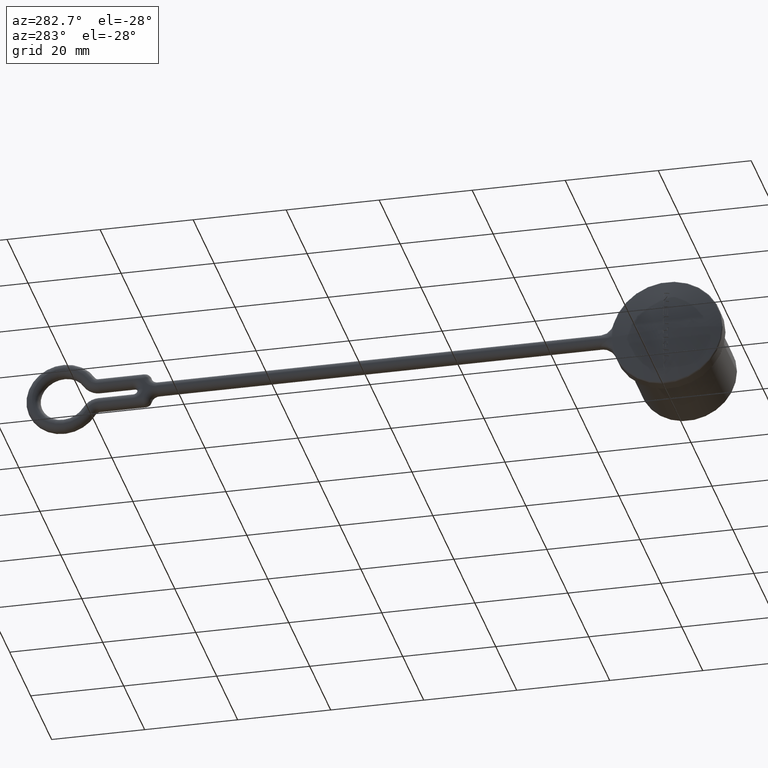
[diagram: clean part render]
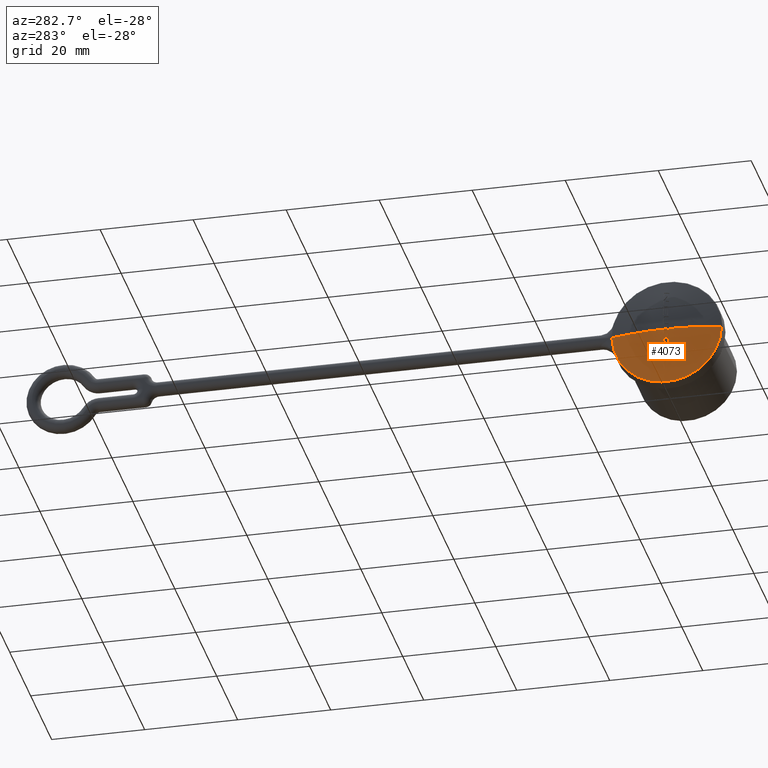
[diagram: same view with one face highlighted and labeled with its STEP entity id]
A machine part, auxiliary view. The second image highlights one B-rep face of the part: STEP entity #4073.
In plain terms, the highlighted spherical surface has radius 48.75 mm.
Its self-contained STEP definition (entity closure, byte-faithful):
#710=CARTESIAN_POINT('',(-3.057208958096E0,0.E0,0.E0));
#711=DIRECTION('',(-1.E0,0.E0,0.E0));
#712=DIRECTION('',(0.E0,9.990943170941E-1,-4.255050587678E-2));
#713=AXIS2_PLACEMENT_3D('',#710,#711,#712);
#756=CARTESIAN_POINT('',(-3.057209793561E0,1.176178341814E1,
-5.009238394383E-1));
#757=CARTESIAN_POINT('',(-3.057523340056E0,1.176293499633E1,
-4.442870627712E-1));
#758=CARTESIAN_POINT('',(-3.059185064044E0,1.176014676627E1,
-3.316713439613E-1));
#759=CARTESIAN_POINT('',(-3.060141706967E0,1.176016224618E1,
-1.646996612449E-1));
#760=CARTESIAN_POINT('',(-3.060118612482E0,1.176016822093E1,
-5.469247591554E-2));
#761=CARTESIAN_POINT('',(-3.060216983427E0,1.175977246916E1,
-4.892866496235E-8));
#763=CARTESIAN_POINT('',(4.425E1,0.E0,0.E0));
#764=DIRECTION('',(0.E0,2.059349286905E-13,1.E0));
#765=DIRECTION('',(-9.704687696995E-1,2.412267958537E-1,-4.967702300238E-14));
#766=AXIS2_PLACEMENT_3D('',#763,#764,#765);
#768=CARTESIAN_POINT('',(4.425E1,0.E0,0.E0));
#769=DIRECTION('',(0.E0,4.136462142204E-13,1.E0));
#770=DIRECTION('',(-1.E0,0.E0,0.E0));
#771=AXIS2_PLACEMENT_3D('',#768,#769,#770);
#773=CARTESIAN_POINT('',(-4.498080625976E0,-4.325913584815E-1,
4.933543109338E-14));
#774=CARTESIAN_POINT('',(-4.498080625976E0,-4.325913584815E-1,
-3.915975593561E-2));
#775=CARTESIAN_POINT('',(-4.497996886026E0,-4.326119912033E-1,
-1.131116318106E-1));
#776=CARTESIAN_POINT('',(-4.497556203359E0,-4.325519952907E-1,
-2.367846832174E-1));
#777=CARTESIAN_POINT('',(-4.497089122367E0,-4.325913584815E-1,
-3.133244833004E-1));
#778=CARTESIAN_POINT('',(-4.496808859339E0,-4.325913584815E-1,
-3.521231999408E-1));
#780=CARTESIAN_POINT('',(-4.496808859339E0,-4.325913584815E-1,
-3.521231999408E-1));
#781=CARTESIAN_POINT('',(-4.497431655633E0,-3.721529745646E-1,
-3.401552031350E-1));
#782=CARTESIAN_POINT('',(-4.498375862609E0,-2.577881739557E-1,
-3.175094767189E-1));
#783=CARTESIAN_POINT('',(-4.499097437384E0,-1.083110463108E-1,
-2.879088002912E-1));
#784=CARTESIAN_POINT('',(-4.499349786419E0,2.317548602823E-2,
-2.618736375341E-1));
#785=CARTESIAN_POINT('',(-4.499249432860E0,1.534141175026E-1,
-2.360839600087E-1));
#786=CARTESIAN_POINT('',(-4.498754162778E0,2.927464829276E-1,
-2.084907586976E-1));
#787=CARTESIAN_POINT('',(-4.498029589729E0,4.007198801805E-1,
-1.871110736034E-1));
#788=CARTESIAN_POINT('',(-4.497526856209E0,4.585512015185E-1,
-1.756593268129E-1));
#790=CARTESIAN_POINT('',(-4.497526856209E0,4.585512015185E-1,
-1.756593268129E-1));
#791=CARTESIAN_POINT('',(-4.497272979800E0,4.585512015185E-1,
-2.461130131400E-1));
#792=CARTESIAN_POINT('',(-4.496462225808E0,4.586984267829E-1,
-3.905752090823E-1));
#793=CARTESIAN_POINT('',(-4.493854253568E0,4.582199038994E-1,
-6.430186121275E-1));
#794=CARTESIAN_POINT('',(-4.490817496245E0,4.585512015186E-1,
-8.336809729970E-1));
#795=CARTESIAN_POINT('',(-4.488893381997E0,4.585512015186E-1,
-9.340785268129E-1));
#797=CARTESIAN_POINT('',(-4.488893381997E0,4.585512015186E-1,
-9.340785268129E-1));
#798=CARTESIAN_POINT('',(-4.489454546357E0,3.585803908266E-1,
-9.538747269343E-1));
#799=CARTESIAN_POINT('',(-4.489933442665E0,1.751657467374E-1,
-9.903071313617E-1));
#800=CARTESIAN_POINT('',(-4.488792025554E0,-1.356907646982E-1,
-1.051805901639E0));
#801=CARTESIAN_POINT('',(-4.486811293758E0,-3.293632169291E-1,
-1.090101183808E0));
#802=CARTESIAN_POINT('',(-4.485429210122E0,-4.325913584817E-1,
-1.110542399941E0));
#804=CARTESIAN_POINT('',(-4.485429210122E0,-4.325913584817E-1,
-1.110542399941E0));
#805=CARTESIAN_POINT('',(-4.483947095646E0,-4.325913584817E-1,
-1.175584027466E0));
#806=CARTESIAN_POINT('',(-4.480649402034E0,-4.325757167476E-1,
-1.308853007131E0));
#807=CARTESIAN_POINT('',(-4.474617770362E0,-4.326079811439E-1,
-1.517252247453E0));
#808=CARTESIAN_POINT('',(-4.469803864877E0,-4.325913584815E-1,
-1.661774402549E0));
#809=CARTESIAN_POINT('',(-4.467183579362E0,-4.325913584815E-1,
-1.735335359941E0));
#811=CARTESIAN_POINT('',(-4.467183579362E0,-4.325913584815E-1,
-1.735335359941E0));
#812=CARTESIAN_POINT('',(-4.466709031189E0,-4.623749085332E-1,
-1.741233092620E0));
#813=CARTESIAN_POINT('',(-4.465698024899E0,-5.222730860976E-1,
-1.753094086311E0));
#814=CARTESIAN_POINT('',(-4.463981141187E0,-6.135404872537E-1,
-1.771166897322E0));
#815=CARTESIAN_POINT('',(-4.462701880191E0,-6.751268983993E-1,
-1.783362199491E0));
#816=CARTESIAN_POINT('',(-4.462026163502E0,-7.061639984814E-1,
-1.789508159898E0));
#818=CARTESIAN_POINT('',(-4.462026163502E0,-7.061639984814E-1,
-1.789508159898E0));
#819=CARTESIAN_POINT('',(-4.467858173941E0,-7.061639984814E-1,
-1.630755575558E0));
#820=CARTESIAN_POINT('',(-4.477382949954E0,-7.061651811377E-1,
-1.328991058626E0));
#821=CARTESIAN_POINT('',(-4.486464709706E0,-7.061602831335E-1,
-9.310413564554E-1));
#822=CARTESIAN_POINT('',(-4.491758699698E0,-7.061649635257E-1,
-5.829382380216E-1));
#823=CARTESIAN_POINT('',(-4.494342333398E0,-7.061641146659E-1,
-2.808995927502E-1));
#824=CARTESIAN_POINT('',(-4.494885192273E0,-7.061639984816E-1,
-9.906771831985E-2));
#825=CARTESIAN_POINT('',(-4.494885192273E0,-7.061639984816E-1,
9.300844638873E-14));
#827=CARTESIAN_POINT('',(4.425E1,0.E0,0.E0));
#828=DIRECTION('',(0.E0,4.136462142204E-13,1.E0));
#829=DIRECTION('',(-9.998950808670E-1,-1.448541535346E-2,0.E0));
#830=AXIS2_PLACEMENT_3D('',#827,#828,#829);
#832=CARTESIAN_POINT('',(-4.299103784608E0,-3.432062384814E-1,
-4.407860159898E0));
#833=CARTESIAN_POINT('',(-4.298841429486E0,-3.803402284300E-1,
-4.407858455902E0));
#834=CARTESIAN_POINT('',(-4.299322196569E0,-4.499594600489E-1,
-4.396342743900E0));
#835=CARTESIAN_POINT('',(-4.306305568314E0,-5.474782355764E-1,
-4.307466892834E0));
#836=CARTESIAN_POINT('',(-4.317012399508E0,-6.031694617255E-1,
-4.177470050581E0));
#837=CARTESIAN_POINT('',(-4.329190139496E0,-6.427679570801E-1,
-4.027467169485E0));
#838=CARTESIAN_POINT('',(-4.342473670487E0,-6.700208331774E-1,
-3.859489228670E0));
#839=CARTESIAN_POINT('',(-4.356573875067E0,-6.879204811135E-1,
-3.674618954814E0));
#840=CARTESIAN_POINT('',(-4.371278167049E0,-6.990601074680E-1,
-3.472743116211E0));
#841=CARTESIAN_POINT('',(-4.386382377885E0,-7.049955765509E-1,
-3.253504897467E0));
#842=CARTESIAN_POINT('',(-4.396629752852E0,-7.061639984816E-1,
-3.094524390173E0));
#843=CARTESIAN_POINT('',(-4.401738326017E0,-7.061639984816E-1,
-3.012007679978E0));
#845=CARTESIAN_POINT('',(-4.401738326017E0,-7.061639984816E-1,
-3.012007679978E0));
#846=CARTESIAN_POINT('',(-4.408790271638E0,-7.061639984816E-1,
-2.898100462769E0));
#847=CARTESIAN_POINT('',(-4.421846902277E0,-7.061765052774E-1,
-2.674220843784E0));
#848=CARTESIAN_POINT('',(-4.438510344406E0,-7.061520792435E-1,
-2.350831999088E0));
#849=CARTESIAN_POINT('',(-4.447832946400E0,-7.061639984815E-1,
-2.143637841006E0));
#850=CARTESIAN_POINT('',(-4.452081923116E0,-7.061639984815E-1,
-2.042314559978E0));
#852=CARTESIAN_POINT('',(-4.452081923116E0,-7.061639984815E-1,
-2.042314559978E0));
#853=CARTESIAN_POINT('',(-4.454775573615E0,-5.786914813487E-1,
-2.022156115408E0));
#854=CARTESIAN_POINT('',(-4.459121544451E0,-3.281145455581E-1,
-1.982509437012E0));
#855=CARTESIAN_POINT('',(-4.462736200832E0,8.014023975726E-2,
-1.917959838117E0));
#856=CARTESIAN_POINT('',(-4.462855204952E0,3.290269379606E-1,
-1.878609946773E0));
#857=CARTESIAN_POINT('',(-4.462417253708E0,4.585512015187E-1,
-1.858127039978E0));
#859=CARTESIAN_POINT('',(-4.462417253708E0,4.585512015187E-1,
-1.858127039978E0));
#860=CARTESIAN_POINT('',(-4.459050008427E0,4.585512015187E-1,
-1.946402305127E0));
#861=CARTESIAN_POINT('',(-4.451721948481E0,4.585437904206E-1,
-2.125912079167E0));
#862=CARTESIAN_POINT('',(-4.438823310755E0,4.585588884896E-1,
-2.403586295216E0));
#863=CARTESIAN_POINT('',(-4.428870994915E0,4.585512015188E-1,
-2.594050191819E0));
#864=CARTESIAN_POINT('',(-4.423534874146E0,4.585512015188E-1,
-2.690582399978E0));
#866=CARTESIAN_POINT('',(-4.423534874146E0,4.585512015188E-1,
-2.690582399978E0));
#867=CARTESIAN_POINT('',(-4.423569066063E0,4.082168833220E-1,
-2.698542245646E0));
#868=CARTESIAN_POINT('',(-4.423478457836E0,3.078313002268E-1,
-2.714417137675E0));
#869=CARTESIAN_POINT('',(-4.422857156275E0,1.560337147979E-1,
-2.738422397426E0));
#870=CARTESIAN_POINT('',(-4.422125880318E0,5.563665719373E-2,
-2.754299118615E0));
#871=CARTESIAN_POINT('',(-4.421679650257E0,5.305441518801E-3,
-2.762258473652E0));
#873=CARTESIAN_POINT('',(-4.421679650257E0,5.305441518801E-3,
-2.762258473652E0));
#874=CARTESIAN_POINT('',(-4.417697050178E0,5.255407676118E-2,
-2.832342125207E0));
#875=CARTESIAN_POINT('',(-4.409111472982E0,1.491760084709E-1,
-2.975654687498E0));
#876=CARTESIAN_POINT('',(-4.394220807171E0,3.001640724351E-1,
-3.199627389553E0));
#877=CARTESIAN_POINT('',(-4.382806947578E0,4.050833329744E-1,
-3.355246912375E0));
#878=CARTESIAN_POINT('',(-4.376701092884E0,4.585512015186E-1,
-3.434555519898E0));
#880=CARTESIAN_POINT('',(-4.376701092884E0,4.585512015186E-1,
-3.434555519898E0));
#881=CARTESIAN_POINT('',(-4.369011789234E0,4.585512015186E-1,
-3.543421272115E0));
#882=CARTESIAN_POINT('',(-4.352768980096E0,4.585502302638E-1,
-3.762985887248E0));
#883=CARTESIAN_POINT('',(-4.325700193083E0,4.585521869438E-1,
-4.097779070939E0));
#884=CARTESIAN_POINT('',(-4.305792358798E0,4.585512015189E-1,
-4.324396041922E0));
#885=CARTESIAN_POINT('',(-4.295354391202E0,4.585512015189E-1,
-4.438558079898E0));
#887=CARTESIAN_POINT('',(-4.295354391202E0,4.585512015189E-1,
-4.438558079898E0));
#888=CARTESIAN_POINT('',(-4.305373278827E0,3.988656956535E-1,
-4.335145759575E0));
#889=CARTESIAN_POINT('',(-4.324151799597E0,2.817032568197E-1,
-4.132155844726E0));
#890=CARTESIAN_POINT('',(-4.348792184368E0,1.129562635845E-1,
-3.839765602653E0));
#891=CARTESIAN_POINT('',(-4.363091081898E0,4.894935912337E-3,
-3.652544015427E0));
#892=CARTESIAN_POINT('',(-4.369746733238E0,-4.796447848184E-2,
-3.560958719899E0));
#894=CARTESIAN_POINT('',(-4.369746733238E0,-4.796447848184E-2,
-3.560958719899E0));
#895=CARTESIAN_POINT('',(-4.365724683147E0,-4.796447848184E-2,
-3.615874003156E0));
#896=CARTESIAN_POINT('',(-4.357762009086E0,-4.864369333606E-2,
-3.722030357118E0));
#897=CARTESIAN_POINT('',(-4.346184909466E0,-5.261798893592E-2,
-3.870061091562E0));
#898=CARTESIAN_POINT('',(-4.335029663165E0,-6.091461610130E-2,
-4.007439099275E0));
#899=CARTESIAN_POINT('',(-4.324398243460E0,-7.600418413855E-2,
-4.133953333688E0));
#900=CARTESIAN_POINT('',(-4.314467689757E0,-1.024964337553E-1,
-4.248380253823E0));
#901=CARTESIAN_POINT('',(-4.305757389958E0,-1.509025202474E-1,
-4.345304124075E0));
#902=CARTESIAN_POINT('',(-4.300427629573E0,-2.356718953467E-1,
-4.400704449271E0));
#903=CARTESIAN_POINT('',(-4.299374765907E0,-3.048512913659E-1,
-4.407861919921E0));
#904=CARTESIAN_POINT('',(-4.299103784608E0,-3.432062384814E-1,
-4.407860159898E0));
#906=CARTESIAN_POINT('',(-3.863169370562E0,4.585512015178E-1,
-7.840609919885E0));
#907=CARTESIAN_POINT('',(-3.844268267497E0,4.585512015178E-1,
-7.956594770847E0));
#908=CARTESIAN_POINT('',(-3.805627087884E0,4.585512020111E-1,
-8.188428631990E0));
#909=CARTESIAN_POINT('',(-3.745154700708E0,4.585512020284E-1,
-8.535735668456E0));
#910=CARTESIAN_POINT('',(-3.703164626255E0,4.585512015182E-1,
-8.766985961690E0));
#911=CARTESIAN_POINT('',(-3.681751798631E0,4.585512015182E-1,
-8.882533439885E0));
#913=CARTESIAN_POINT('',(-3.681751798631E0,4.585512015182E-1,
-8.882533439885E0));
#914=CARTESIAN_POINT('',(-3.706088521425E0,3.895466050718E-1,
-8.754770384040E0));
#915=CARTESIAN_POINT('',(-3.752757490329E0,2.533722881533E-1,
-8.502643186550E0));
#916=CARTESIAN_POINT('',(-3.817031360148E0,5.479796551994E-2,
-8.134976662665E0));
#917=CARTESIAN_POINT('',(-3.856322782517E0,-7.392862136144E-2,
-7.896638979948E0));
#918=CARTESIAN_POINT('',(-3.875122996081E0,-1.373495984793E-1,
-7.779214079890E0));
#920=CARTESIAN_POINT('',(-3.875122996081E0,-1.373495984793E-1,
-7.779214079890E0));
#921=CARTESIAN_POINT('',(-3.853405625660E0,-1.980192271861E-1,
-7.912494661050E0));
#922=CARTESIAN_POINT('',(-3.807987379131E0,-3.210832035765E-1,
-8.182842032982E0));
#923=CARTESIAN_POINT('',(-3.733614155913E0,-5.106592556039E-1,
-8.599313019226E0));
#924=CARTESIAN_POINT('',(-3.679584489797E0,-6.404493165655E-1,
-8.884436317722E0));
#925=CARTESIAN_POINT('',(-3.651405020832E0,-7.061639984814E-1,
-9.028799999899E0));
#927=CARTESIAN_POINT('',(-3.651405020832E0,-7.061639984814E-1,
-9.028799999899E0));
#928=CARTESIAN_POINT('',(-3.671806364795E0,-7.061639984814E-1,
-8.920562688166E0));
#929=CARTESIAN_POINT('',(-3.711791150858E0,-7.061640531640E-1,
-8.704401567969E0));
#930=CARTESIAN_POINT('',(-3.769427625228E0,-7.061639491228E-1,
-8.380586094568E0));
#931=CARTESIAN_POINT('',(-3.806118560449E0,-7.061639984805E-1,
-8.166092635350E0));
#932=CARTESIAN_POINT('',(-3.824053591373E0,-7.061639984805E-1,
-8.059106879898E0));
#934=CARTESIAN_POINT('',(-3.824053591373E0,-7.061639984805E-1,
-8.059106879898E0));
#935=CARTESIAN_POINT('',(-3.845971216113E0,-6.448266451107E-1,
-7.933738790022E0));
#936=CARTESIAN_POINT('',(-3.888013589041E0,-5.236818837758E-1,
-7.686131639315E0));
#937=CARTESIAN_POINT('',(-3.945938825553E0,-3.467231330392E-1,
-7.324439851900E0));
#938=CARTESIAN_POINT('',(-3.981347957652E0,-2.318351902250E-1,
-7.089621021816E0));
#939=CARTESIAN_POINT('',(-3.998287973723E0,-1.751908925036E-1,
-6.973845119898E0));
#941=CARTESIAN_POINT('',(-3.998287973723E0,-1.751908925036E-1,
-6.973845119898E0));
#942=CARTESIAN_POINT('',(-3.996279615943E0,-2.340734711721E-1,
-6.986260671369E0));
#943=CARTESIAN_POINT('',(-3.992037247108E0,-3.518544869094E-1,
-7.011095112321E0));
#944=CARTESIAN_POINT('',(-3.984977444090E0,-5.289884245039E-1,
-7.048444294847E0));
#945=CARTESIAN_POINT('',(-3.979817664457E0,-6.470642025879E-1,
-7.073340887605E0));
#946=CARTESIAN_POINT('',(-3.977121405121E0,-7.061639984820E-1,
-7.085802239918E0));
#948=CARTESIAN_POINT('',(-3.977121405121E0,-7.061639984820E-1,
-7.085802239918E0));
#949=CARTESIAN_POINT('',(-3.990744646421E0,-7.061639984820E-1,
-6.993080246014E0));
#950=CARTESIAN_POINT('',(-4.017345228066E0,-7.061640434940E-1,
-6.808313963555E0));
#951=CARTESIAN_POINT('',(-4.055346570398E0,-7.061639543198E-1,
-6.533208892509E0));
#952=CARTESIAN_POINT('',(-4.079434870564E0,-7.061639984821E-1,
-6.351213391473E0));
#953=CARTESIAN_POINT('',(-4.091173927466E0,-7.061639984821E-1,
-6.260569919918E0));
#955=CARTESIAN_POINT('',(-4.091173927466E0,-7.061639984821E-1,
-6.260569919918E0));
#956=CARTESIAN_POINT('',(-4.096607368061E0,-5.765341370434E-1,
-6.233237111925E0));
#957=CARTESIAN_POINT('',(-4.106353949558E0,-3.181943913380E-1,
-6.178765798790E0));
#958=CARTESIAN_POINT('',(-4.117790737045E0,7.218806653517E-2,
-6.096451854481E0));
#959=CARTESIAN_POINT('',(-4.123166575755E0,3.295397663383E-1,
-6.042188971056E0));
#960=CARTESIAN_POINT('',(-4.125326019368E0,4.585512015190E-1,
-6.014986559918E0));
#962=CARTESIAN_POINT('',(-4.125326019368E0,4.585512015190E-1,
-6.014986559918E0));
#963=CARTESIAN_POINT('',(-4.114023747710E0,4.585512015190E-1,
-6.105884697556E0));
#964=CARTESIAN_POINT('',(-4.090832217606E0,4.585511665450E-1,
-6.288217218157E0));
#965=CARTESIAN_POINT('',(-4.054254596726E0,4.585512372698E-1,
-6.563311357814E0));
#966=CARTESIAN_POINT('',(-4.028658783400E0,4.585512015196E-1,
-6.747744814238E0));
#967=CARTESIAN_POINT('',(-4.015553311556E0,4.585512015196E-1,
-6.840218879919E0));
#969=CARTESIAN_POINT('',(-4.015553311556E0,4.585512015196E-1,
-6.840218879919E0));
#970=CARTESIAN_POINT('',(-4.014370966448E0,4.005406850166E-1,
-6.852450554716E0));
#971=CARTESIAN_POINT('',(-4.011788969588E0,2.845642326093E-1,
-6.876904500091E0));
#972=CARTESIAN_POINT('',(-4.007251022891E0,1.102640231053E-1,
-6.913656180398E0));
#973=CARTESIAN_POINT('',(-4.003791445056E0,-5.791222891287E-3,
-6.938126739948E0));
#974=CARTESIAN_POINT('',(-4.001951004156E0,-6.385782185109E-2,
-6.950370239884E0));
#976=CARTESIAN_POINT('',(-4.001951004156E0,-6.385782185109E-2,
-6.950370239884E0));
#977=CARTESIAN_POINT('',(-3.988337847814E0,-8.098519969070E-3,
-7.045389929139E0));
#978=CARTESIAN_POINT('',(-3.959969724540E0,1.049586310193E-1,
-7.238050264001E0));
#979=CARTESIAN_POINT('',(-3.913824528181E0,2.790447671989E-1,
-7.534713082284E0));
#980=CARTESIAN_POINT('',(-3.880501013071E0,3.982115461662E-1,
-7.737784828685E0));
#981=CARTESIAN_POINT('',(-3.863169370562E0,4.585512015178E-1,
-7.840609919885E0));
#983=CARTESIAN_POINT('',(-4.269651307864E0,4.585512015180E-1,
-4.711227839898E0));
#984=CARTESIAN_POINT('',(-4.260216430008E0,4.585512015180E-1,
-4.808395075123E0));
#985=CARTESIAN_POINT('',(-4.240669001039E0,4.585510738280E-1,
-5.003640424351E0));
#986=CARTESIAN_POINT('',(-4.209262100671E0,4.585513311581E-1,
-5.299234124699E0));
#987=CARTESIAN_POINT('',(-4.186907711893E0,4.585512015189E-1,
-5.498027019078E0));
#988=CARTESIAN_POINT('',(-4.175367721893E0,4.585512015189E-1,
-5.597855999898E0));
#990=CARTESIAN_POINT('',(-4.175367721893E0,4.585512015189E-1,
-5.597855999898E0));
#991=CARTESIAN_POINT('',(-4.173859990953E0,3.294519560011E-1,
-5.621474156443E0));
#992=CARTESIAN_POINT('',(-4.169799662745E0,7.215378882964E-2,
-5.668545223180E0));
#993=CARTESIAN_POINT('',(-4.160384554775E0,-3.185949647102E-1,
-5.740031991504E0));
#994=CARTESIAN_POINT('',(-4.152016436728E0,-5.766419370459E-1,
-5.787240170984E0));
#995=CARTESIAN_POINT('',(-4.147281524192E0,-7.061639984824E-1,
-5.810935679898E0));
#997=CARTESIAN_POINT('',(-4.147281524192E0,-7.061639984824E-1,
-5.810935679898E0));
#998=CARTESIAN_POINT('',(-4.159315356276E0,-7.061639984824E-1,
-5.710710037888E0));
#999=CARTESIAN_POINT('',(-4.182616390601E0,-7.061641579401E-1,
-5.511383252740E0));
#1000=CARTESIAN_POINT('',(-4.215332442876E0,-7.061638416341E-1,
-5.215793172665E0));
#1001=CARTESIAN_POINT('',(-4.235689635553E0,-7.061639984814E-1,
-5.021074930006E0));
#1002=CARTESIAN_POINT('',(-4.245515543783E0,-7.061639984814E-1,
-4.924307519898E0));
#1004=CARTESIAN_POINT('',(-4.245515543783E0,-7.061639984814E-1,
-4.924307519898E0));
#1005=CARTESIAN_POINT('',(-4.249807221034E0,-5.766548107984E-1,
-4.900614366183E0));
#1006=CARTESIAN_POINT('',(-4.257288280467E0,-3.189585268644E-1,
-4.853470584294E0));
#1007=CARTESIAN_POINT('',(-4.265397487862E0,7.280605128822E-2,
-4.781797312223E0));
#1008=CARTESIAN_POINT('',(-4.268578786780E0,3.295351434042E-1,
-4.734830777661E0));
#1009=CARTESIAN_POINT('',(-4.269651307864E0,4.585512015180E-1,
-4.711227839898E0));
#2577=CARTESIAN_POINT('',(-4.494885192267E0,-7.061639984814E-1,
2.921020645906E-13));
#2578=CARTESIAN_POINT('',(-3.057208958096E0,-1.177244582043E1,
4.869627645738E-12));
#2579=VERTEX_POINT('',#2577);
#2580=VERTEX_POINT('',#2578);
#2581=CARTESIAN_POINT('',(-4.5E0,0.E0,0.E0));
#2582=CARTESIAN_POINT('',(-4.498080625975E0,-4.325913584816E-1,
1.789397777404E-13));
#2583=VERTEX_POINT('',#2581);
#2584=VERTEX_POINT('',#2582);
#2585=CARTESIAN_POINT('',(-3.060352522852E0,1.175980629787E1,
-2.421754871366E-12));
#2586=VERTEX_POINT('',#2585);
#2927=VERTEX_POINT('',#818);
#2931=VERTEX_POINT('',#756);
#2932=VERTEX_POINT('',#778);
#2933=VERTEX_POINT('',#788);
#2934=VERTEX_POINT('',#795);
#2935=VERTEX_POINT('',#802);
#2936=VERTEX_POINT('',#809);
#2937=VERTEX_POINT('',#832);
#2938=VERTEX_POINT('',#843);
#2939=VERTEX_POINT('',#850);
#2940=VERTEX_POINT('',#857);
#2941=VERTEX_POINT('',#864);
#2942=VERTEX_POINT('',#871);
#2943=VERTEX_POINT('',#878);
#2944=VERTEX_POINT('',#885);
#2945=VERTEX_POINT('',#892);
#2946=VERTEX_POINT('',#906);
#2947=VERTEX_POINT('',#911);
#2948=VERTEX_POINT('',#918);
#2949=VERTEX_POINT('',#925);
#2950=VERTEX_POINT('',#932);
#2951=VERTEX_POINT('',#939);
#2952=VERTEX_POINT('',#946);
#2953=VERTEX_POINT('',#953);
#2954=VERTEX_POINT('',#960);
#2955=VERTEX_POINT('',#967);
#2956=VERTEX_POINT('',#974);
#2957=VERTEX_POINT('',#983);
#2958=VERTEX_POINT('',#988);
#2959=VERTEX_POINT('',#995);
#2960=VERTEX_POINT('',#1002);
#3993=CARTESIAN_POINT('',(4.425E1,0.E0,0.E0));
#3994=DIRECTION('',(1.E0,0.E0,0.E0));
#3995=DIRECTION('',(0.E0,-1.E0,0.E0));
#3996=AXIS2_PLACEMENT_3D('',#3993,#3994,#3995);
#3997=SPHERICAL_SURFACE('',#3996,4.875E1);
#3998=ORIENTED_EDGE('',*,*,#3915,.T.);
#3999=ORIENTED_EDGE('',*,*,#3730,.T.);
#4000=ORIENTED_EDGE('',*,*,#3728,.T.);
#4002=ORIENTED_EDGE('',*,*,#4001,.T.);
#4004=ORIENTED_EDGE('',*,*,#4003,.T.);
#4006=ORIENTED_EDGE('',*,*,#4005,.T.);
#4008=ORIENTED_EDGE('',*,*,#4007,.T.);
#4010=ORIENTED_EDGE('',*,*,#4009,.T.);
#4012=ORIENTED_EDGE('',*,*,#4011,.T.);
#4014=ORIENTED_EDGE('',*,*,#4013,.T.);
#4015=ORIENTED_EDGE('',*,*,#3720,.T.);
#4016=ORIENTED_EDGE('',*,*,#3826,.F.);
#4017=EDGE_LOOP('',(#3998,#3999,#4000,#4002,#4004,#4006,#4008,#4010,#4012,#4014,
#4015,#4016));
#4018=FACE_OUTER_BOUND('',#4017,.F.);
#4020=ORIENTED_EDGE('',*,*,#4019,.T.);
#4022=ORIENTED_EDGE('',*,*,#4021,.T.);
#4024=ORIENTED_EDGE('',*,*,#4023,.T.);
#4026=ORIENTED_EDGE('',*,*,#4025,.T.);
#4028=ORIENTED_EDGE('',*,*,#4027,.T.);
#4030=ORIENTED_EDGE('',*,*,#4029,.T.);
#4032=ORIENTED_EDGE('',*,*,#4031,.T.);
#4034=ORIENTED_EDGE('',*,*,#4033,.T.);
#4036=ORIENTED_EDGE('',*,*,#4035,.T.);
#4037=EDGE_LOOP('',(#4020,#4022,#4024,#4026,#4028,#4030,#4032,#4034,#4036));
#4038=FACE_BOUND('',#4037,.F.);
#4040=ORIENTED_EDGE('',*,*,#4039,.T.);
#4042=ORIENTED_EDGE('',*,*,#4041,.T.);
#4044=ORIENTED_EDGE('',*,*,#4043,.T.);
#4046=ORIENTED_EDGE('',*,*,#4045,.T.);
#4048=ORIENTED_EDGE('',*,*,#4047,.T.);
#4050=ORIENTED_EDGE('',*,*,#4049,.T.);
#4052=ORIENTED_EDGE('',*,*,#4051,.T.);
#4054=ORIENTED_EDGE('',*,*,#4053,.T.);
#4056=ORIENTED_EDGE('',*,*,#4055,.T.);
#4058=ORIENTED_EDGE('',*,*,#4057,.T.);
#4060=ORIENTED_EDGE('',*,*,#4059,.T.);
#4061=EDGE_LOOP('',(#4040,#4042,#4044,#4046,#4048,#4050,#4052,#4054,#4056,#4058,
#4060));
#4062=FACE_BOUND('',#4061,.F.);
#4064=ORIENTED_EDGE('',*,*,#4063,.T.);
#4066=ORIENTED_EDGE('',*,*,#4065,.T.);
#4068=ORIENTED_EDGE('',*,*,#4067,.T.);
#4070=ORIENTED_EDGE('',*,*,#4069,.T.);
#4071=EDGE_LOOP('',(#4064,#4066,#4068,#4070));
#4072=FACE_BOUND('',#4071,.F.);
#714=CIRCLE('',#713,1.177244582044E1);
#762=B_SPLINE_CURVE_WITH_KNOTS('',3,(#756,#757,#758,#759,#760,#761),
.UNSPECIFIED.,.F.,.F.,(4,1,1,4),(0.E0,3.333333333333E-1,6.666666666667E-1,1.E0),
.UNSPECIFIED.);
#767=CIRCLE('',#766,4.875E1);
#772=CIRCLE('',#771,4.875E1);
#779=B_SPLINE_CURVE_WITH_KNOTS('',3,(#773,#774,#775,#776,#777,#778),
.UNSPECIFIED.,.F.,.F.,(4,1,1,4),(0.E0,3.333333333333E-1,6.666666666667E-1,1.E0),
.UNSPECIFIED.);
#789=B_SPLINE_CURVE_WITH_KNOTS('',3,(#780,#781,#782,#783,#784,#785,#786,#787,
#788),.UNSPECIFIED.,.F.,.F.,(4,1,1,1,1,1,4),(0.E0,1.666666666667E-1,
3.333333333333E-1,5.E-1,6.666666666667E-1,8.333333333333E-1,1.E0),
.UNSPECIFIED.);
#796=B_SPLINE_CURVE_WITH_KNOTS('',3,(#790,#791,#792,#793,#794,#795),
.UNSPECIFIED.,.F.,.F.,(4,1,1,4),(0.E0,3.333333333333E-1,6.666666666667E-1,1.E0),
.UNSPECIFIED.);
#803=B_SPLINE_CURVE_WITH_KNOTS('',3,(#797,#798,#799,#800,#801,#802),
.UNSPECIFIED.,.F.,.F.,(4,1,1,4),(0.E0,3.333333333333E-1,6.666666666667E-1,1.E0),
.UNSPECIFIED.);
#810=B_SPLINE_CURVE_WITH_KNOTS('',3,(#804,#805,#806,#807,#808,#809),
.UNSPECIFIED.,.F.,.F.,(4,1,1,4),(0.E0,3.333333333333E-1,6.666666666667E-1,1.E0),
.UNSPECIFIED.);
#817=B_SPLINE_CURVE_WITH_KNOTS('',3,(#811,#812,#813,#814,#815,#816),
.UNSPECIFIED.,.F.,.F.,(4,1,1,4),(0.E0,3.333333333333E-1,6.666666666667E-1,1.E0),
.UNSPECIFIED.);
#826=B_SPLINE_CURVE_WITH_KNOTS('',3,(#818,#819,#820,#821,#822,#823,#824,#825),
.UNSPECIFIED.,.F.,.F.,(4,1,1,1,1,4),(0.E0,2.E-1,4.E-1,6.E-1,8.E-1,1.E0),
.UNSPECIFIED.);
#831=CIRCLE('',#830,4.875E1);
#844=B_SPLINE_CURVE_WITH_KNOTS('',3,(#832,#833,#834,#835,#836,#837,#838,#839,
#840,#841,#842,#843),.UNSPECIFIED.,.F.,.F.,(4,1,1,1,1,1,1,1,1,4),(0.E0,
1.111111111111E-1,2.222222222222E-1,3.333333333333E-1,4.444444444444E-1,
5.555555555556E-1,6.666666666667E-1,7.777777777778E-1,8.888888888889E-1,1.E0),
.UNSPECIFIED.);
#851=B_SPLINE_CURVE_WITH_KNOTS('',3,(#845,#846,#847,#848,#849,#850),
.UNSPECIFIED.,.F.,.F.,(4,1,1,4),(0.E0,3.333333333333E-1,6.666666666667E-1,1.E0),
.UNSPECIFIED.);
#858=B_SPLINE_CURVE_WITH_KNOTS('',3,(#852,#853,#854,#855,#856,#857),
.UNSPECIFIED.,.F.,.F.,(4,1,1,4),(0.E0,3.333333333333E-1,6.666666666667E-1,1.E0),
.UNSPECIFIED.);
#865=B_SPLINE_CURVE_WITH_KNOTS('',3,(#859,#860,#861,#862,#863,#864),
.UNSPECIFIED.,.F.,.F.,(4,1,1,4),(0.E0,3.333333333333E-1,6.666666666667E-1,1.E0),
.UNSPECIFIED.);
#872=B_SPLINE_CURVE_WITH_KNOTS('',3,(#866,#867,#868,#869,#870,#871),
.UNSPECIFIED.,.F.,.F.,(4,1,1,4),(0.E0,3.333333333333E-1,6.666666666667E-1,1.E0),
.UNSPECIFIED.);
#879=B_SPLINE_CURVE_WITH_KNOTS('',3,(#873,#874,#875,#876,#877,#878),
.UNSPECIFIED.,.F.,.F.,(4,1,1,4),(0.E0,3.333333333333E-1,6.666666666667E-1,1.E0),
.UNSPECIFIED.);
#886=B_SPLINE_CURVE_WITH_KNOTS('',3,(#880,#881,#882,#883,#884,#885),
.UNSPECIFIED.,.F.,.F.,(4,1,1,4),(0.E0,3.333333333333E-1,6.666666666667E-1,1.E0),
.UNSPECIFIED.);
#893=B_SPLINE_CURVE_WITH_KNOTS('',3,(#887,#888,#889,#890,#891,#892),
.UNSPECIFIED.,.F.,.F.,(4,1,1,4),(0.E0,3.333333333333E-1,6.666666666667E-1,1.E0),
.UNSPECIFIED.);
#905=B_SPLINE_CURVE_WITH_KNOTS('',3,(#894,#895,#896,#897,#898,#899,#900,#901,
#902,#903,#904),.UNSPECIFIED.,.F.,.F.,(4,1,1,1,1,1,1,1,4),(0.E0,1.25E-1,2.5E-1,
3.75E-1,5.E-1,6.25E-1,7.5E-1,8.75E-1,1.E0),.UNSPECIFIED.);
#912=B_SPLINE_CURVE_WITH_KNOTS('',3,(#906,#907,#908,#909,#910,#911),
.UNSPECIFIED.,.F.,.F.,(4,1,1,4),(0.E0,3.333333333333E-1,6.666666666667E-1,1.E0),
.UNSPECIFIED.);
#919=B_SPLINE_CURVE_WITH_KNOTS('',3,(#913,#914,#915,#916,#917,#918),
.UNSPECIFIED.,.F.,.F.,(4,1,1,4),(0.E0,3.333333333333E-1,6.666666666667E-1,1.E0),
.UNSPECIFIED.);
#926=B_SPLINE_CURVE_WITH_KNOTS('',3,(#920,#921,#922,#923,#924,#925),
.UNSPECIFIED.,.F.,.F.,(4,1,1,4),(0.E0,3.333333333333E-1,6.666666666667E-1,1.E0),
.UNSPECIFIED.);
#933=B_SPLINE_CURVE_WITH_KNOTS('',3,(#927,#928,#929,#930,#931,#932),
.UNSPECIFIED.,.F.,.F.,(4,1,1,4),(0.E0,3.333333333333E-1,6.666666666667E-1,1.E0),
.UNSPECIFIED.);
#940=B_SPLINE_CURVE_WITH_KNOTS('',3,(#934,#935,#936,#937,#938,#939),
.UNSPECIFIED.,.F.,.F.,(4,1,1,4),(0.E0,3.333333333333E-1,6.666666666667E-1,1.E0),
.UNSPECIFIED.);
#947=B_SPLINE_CURVE_WITH_KNOTS('',3,(#941,#942,#943,#944,#945,#946),
.UNSPECIFIED.,.F.,.F.,(4,1,1,4),(0.E0,3.333333333333E-1,6.666666666667E-1,1.E0),
.UNSPECIFIED.);
#954=B_SPLINE_CURVE_WITH_KNOTS('',3,(#948,#949,#950,#951,#952,#953),
.UNSPECIFIED.,.F.,.F.,(4,1,1,4),(0.E0,3.333333333333E-1,6.666666666667E-1,1.E0),
.UNSPECIFIED.);
#961=B_SPLINE_CURVE_WITH_KNOTS('',3,(#955,#956,#957,#958,#959,#960),
.UNSPECIFIED.,.F.,.F.,(4,1,1,4),(0.E0,3.333333333333E-1,6.666666666667E-1,1.E0),
.UNSPECIFIED.);
#968=B_SPLINE_CURVE_WITH_KNOTS('',3,(#962,#963,#964,#965,#966,#967),
.UNSPECIFIED.,.F.,.F.,(4,1,1,4),(0.E0,3.333333333333E-1,6.666666666667E-1,1.E0),
.UNSPECIFIED.);
#975=B_SPLINE_CURVE_WITH_KNOTS('',3,(#969,#970,#971,#972,#973,#974),
.UNSPECIFIED.,.F.,.F.,(4,1,1,4),(0.E0,3.333333333333E-1,6.666666666667E-1,1.E0),
.UNSPECIFIED.);
#982=B_SPLINE_CURVE_WITH_KNOTS('',3,(#976,#977,#978,#979,#980,#981),
.UNSPECIFIED.,.F.,.F.,(4,1,1,4),(0.E0,3.333333333333E-1,6.666666666667E-1,1.E0),
.UNSPECIFIED.);
#989=B_SPLINE_CURVE_WITH_KNOTS('',3,(#983,#984,#985,#986,#987,#988),
.UNSPECIFIED.,.F.,.F.,(4,1,1,4),(0.E0,3.333333333333E-1,6.666666666667E-1,1.E0),
.UNSPECIFIED.);
#996=B_SPLINE_CURVE_WITH_KNOTS('',3,(#990,#991,#992,#993,#994,#995),
.UNSPECIFIED.,.F.,.F.,(4,1,1,4),(0.E0,3.333333333333E-1,6.666666666667E-1,1.E0),
.UNSPECIFIED.);
#1003=B_SPLINE_CURVE_WITH_KNOTS('',3,(#997,#998,#999,#1000,#1001,#1002),
.UNSPECIFIED.,.F.,.F.,(4,1,1,4),(0.E0,3.333333333333E-1,6.666666666667E-1,1.E0),
.UNSPECIFIED.);
#1010=B_SPLINE_CURVE_WITH_KNOTS('',3,(#1004,#1005,#1006,#1007,#1008,#1009),
.UNSPECIFIED.,.F.,.F.,(4,1,1,4),(0.E0,3.333333333333E-1,6.666666666667E-1,1.E0),
.UNSPECIFIED.);
#3720=EDGE_CURVE('',#2579,#2580,#831,.T.);
#3728=EDGE_CURVE('',#2583,#2584,#772,.T.);
#3730=EDGE_CURVE('',#2586,#2583,#767,.T.);
#3826=EDGE_CURVE('',#2931,#2580,#714,.T.);
#3915=EDGE_CURVE('',#2931,#2586,#762,.T.);
#4001=EDGE_CURVE('',#2584,#2932,#779,.T.);
#4003=EDGE_CURVE('',#2932,#2933,#789,.T.);
#4005=EDGE_CURVE('',#2933,#2934,#796,.T.);
#4007=EDGE_CURVE('',#2934,#2935,#803,.T.);
#4009=EDGE_CURVE('',#2935,#2936,#810,.T.);
#4011=EDGE_CURVE('',#2936,#2927,#817,.T.);
#4013=EDGE_CURVE('',#2927,#2579,#826,.T.);
#4019=EDGE_CURVE('',#2937,#2938,#844,.T.);
#4021=EDGE_CURVE('',#2938,#2939,#851,.T.);
#4023=EDGE_CURVE('',#2939,#2940,#858,.T.);
#4025=EDGE_CURVE('',#2940,#2941,#865,.T.);
#4027=EDGE_CURVE('',#2941,#2942,#872,.T.);
#4029=EDGE_CURVE('',#2942,#2943,#879,.T.);
#4031=EDGE_CURVE('',#2943,#2944,#886,.T.);
#4033=EDGE_CURVE('',#2944,#2945,#893,.T.);
#4035=EDGE_CURVE('',#2945,#2937,#905,.T.);
#4039=EDGE_CURVE('',#2946,#2947,#912,.T.);
#4041=EDGE_CURVE('',#2947,#2948,#919,.T.);
#4043=EDGE_CURVE('',#2948,#2949,#926,.T.);
#4045=EDGE_CURVE('',#2949,#2950,#933,.T.);
#4047=EDGE_CURVE('',#2950,#2951,#940,.T.);
#4049=EDGE_CURVE('',#2951,#2952,#947,.T.);
#4051=EDGE_CURVE('',#2952,#2953,#954,.T.);
#4053=EDGE_CURVE('',#2953,#2954,#961,.T.);
#4055=EDGE_CURVE('',#2954,#2955,#968,.T.);
#4057=EDGE_CURVE('',#2955,#2956,#975,.T.);
#4059=EDGE_CURVE('',#2956,#2946,#982,.T.);
#4063=EDGE_CURVE('',#2957,#2958,#989,.T.);
#4065=EDGE_CURVE('',#2958,#2959,#996,.T.);
#4067=EDGE_CURVE('',#2959,#2960,#1003,.T.);
#4069=EDGE_CURVE('',#2960,#2957,#1010,.T.);
#4073=ADVANCED_FACE('',(#4018,#4038,#4062,#4072),#3997,.T.);